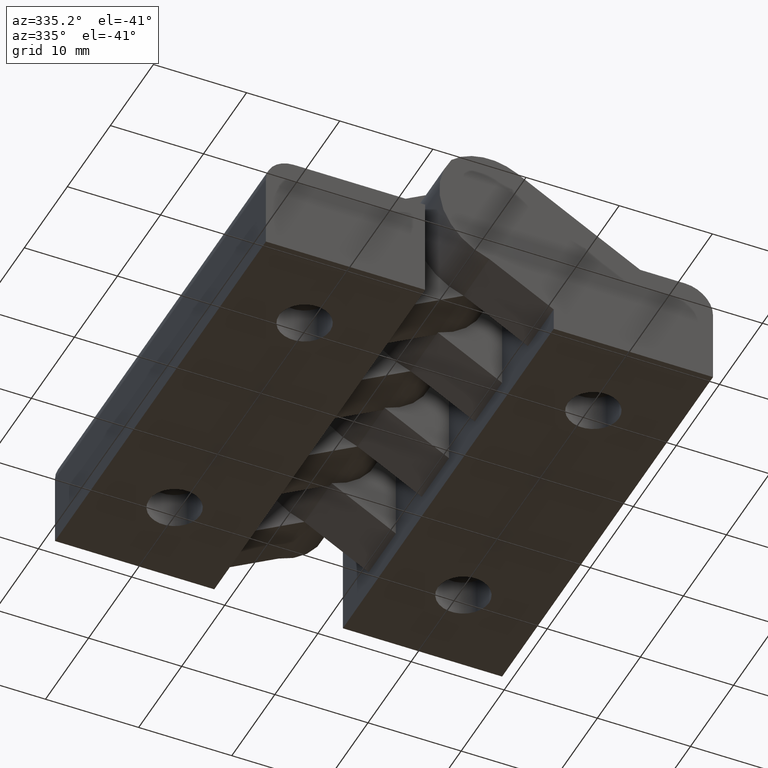
[diagram: clean part render]
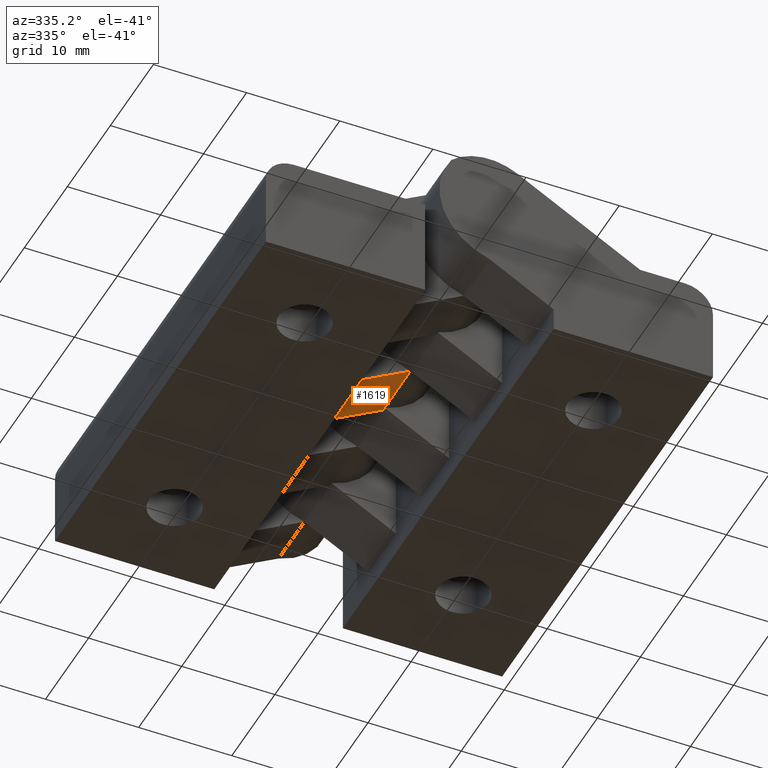
[diagram: same view with one face highlighted and labeled with its STEP entity id]
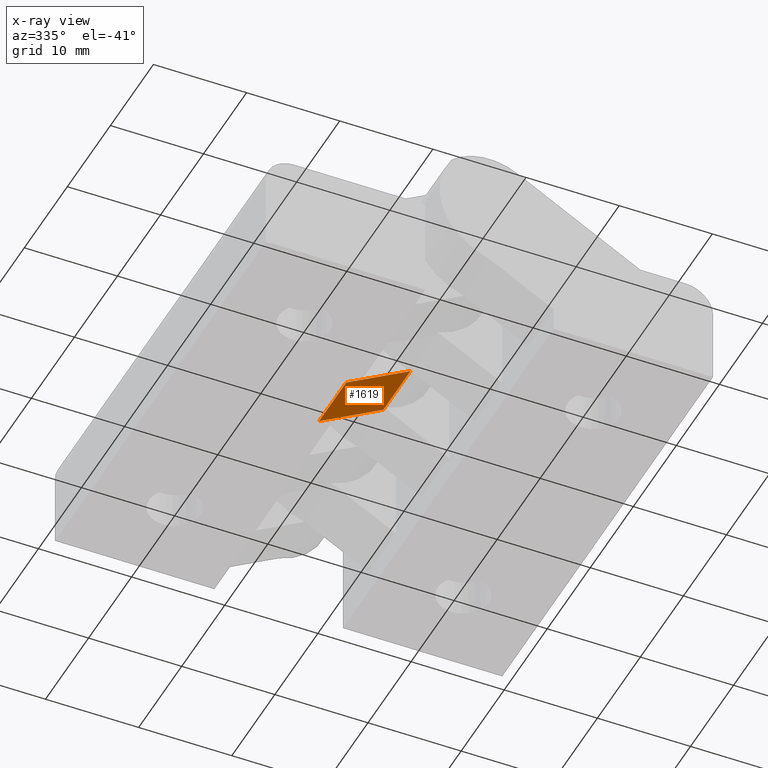
[diagram: x-ray of the same camera — body ghosted, the highlighted face saturated]
A machine part, auxiliary view. The second image highlights one B-rep face of the part: STEP entity #1619.
The next image is the same camera in x-ray: the body ghosted, the highlighted face saturated — about 0% of this face is hidden behind the body in this view.
In plain terms, the highlighted planar face has unit normal (0.5, 0, -0.866).
Its self-contained STEP definition (entity closure, byte-faithful):
#1497=CARTESIAN_POINT('',(15.499999999938154,-21.266666666704317,6.483716857382604));
#1498=VERTEX_POINT('',#1497);
#1506=CARTESIAN_POINT('',(15.499999999938154,-14.933333333370982,6.483716857382604));
#1507=VERTEX_POINT('',#1506);
#1508=CARTESIAN_POINT('',(15.499999999938153,-21.266666666704314,6.483716857382605));
#1509=DIRECTION('',(0.0,1.0,0.0));
#1510=VECTOR('',#1509,6.333333333333332);
#1511=LINE('',#1508,#1510);
#1512=EDGE_CURVE('',#1498,#1507,#1511,.T.);
#1589=CARTESIAN_POINT('',(15.499999999938154,-39.599999999841650,6.483716857382606));
#1590=DIRECTION('',(0.500000000000002,8.203578E-018,-0.866025403784437));
#1591=DIRECTION('',(-0.866025403784437,-1.366737E-016,-0.500000000000002));
#1592=AXIS2_PLACEMENT_3D('',#1589,#1590,#1591);
#1593=PLANE('',#1592);
#1594=CARTESIAN_POINT('',(8.599999999965775,-14.933333333370989,2.499999999990110));
#1595=VERTEX_POINT('',#1594);
#1596=CARTESIAN_POINT('',(8.599999999965775,-14.933333333370989,2.499999999990110));
#1597=DIRECTION('',(0.866025403784437,2.229522E-016,0.500000000000002));
#1598=VECTOR('',#1597,7.967433714784955);
#1599=LINE('',#1596,#1598);
#1600=EDGE_CURVE('',#1595,#1507,#1599,.T.);
#1601=ORIENTED_EDGE('',*,*,#1600,.T.);
#1602=ORIENTED_EDGE('',*,*,#1512,.F.);
#1603=CARTESIAN_POINT('',(8.599999999965775,-21.266666666704317,2.499999999990111));
#1604=VERTEX_POINT('',#1603);
#1605=CARTESIAN_POINT('',(8.599999999965775,-21.266666666704317,2.499999999990111));
#1606=DIRECTION('',(0.866025403784437,0.0,0.500000000000002));
#1607=VECTOR('',#1606,7.967433714784955);
#1608=LINE('',#1605,#1607);
#1609=EDGE_CURVE('',#1604,#1498,#1608,.T.);
#1610=ORIENTED_EDGE('',*,*,#1609,.F.);
#1611=CARTESIAN_POINT('',(8.599999999965773,-21.266666666704314,2.499999999990110));
#1612=DIRECTION('',(0.0,1.0,0.0));
#1613=VECTOR('',#1612,6.333333333333332);
#1614=LINE('',#1611,#1613);
#1615=EDGE_CURVE('',#1604,#1595,#1614,.T.);
#1616=ORIENTED_EDGE('',*,*,#1615,.T.);
#1617=EDGE_LOOP('',(#1601,#1602,#1610,#1616));
#1618=FACE_OUTER_BOUND('',#1617,.T.);
#1619=ADVANCED_FACE('',(#1618),#1593,.T.);